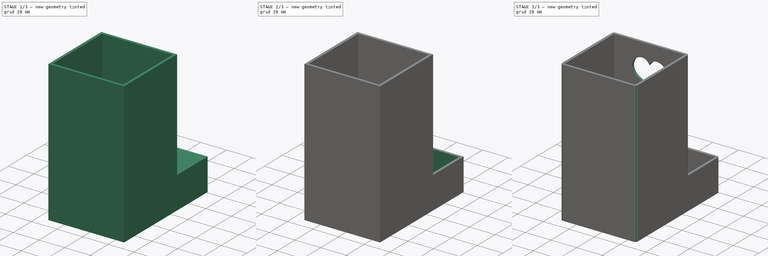
[diagram: build sequence overview — one tinted view per stage of 3, left to right]
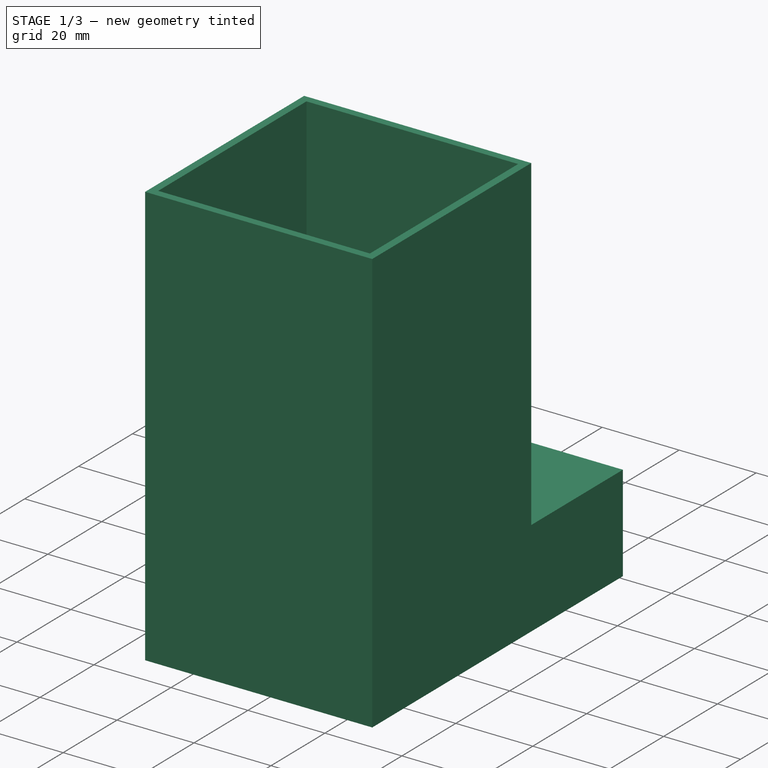
[diagram: stage 1 of 3 — iso view after this stage's code; geometry added in this stage tinted green]
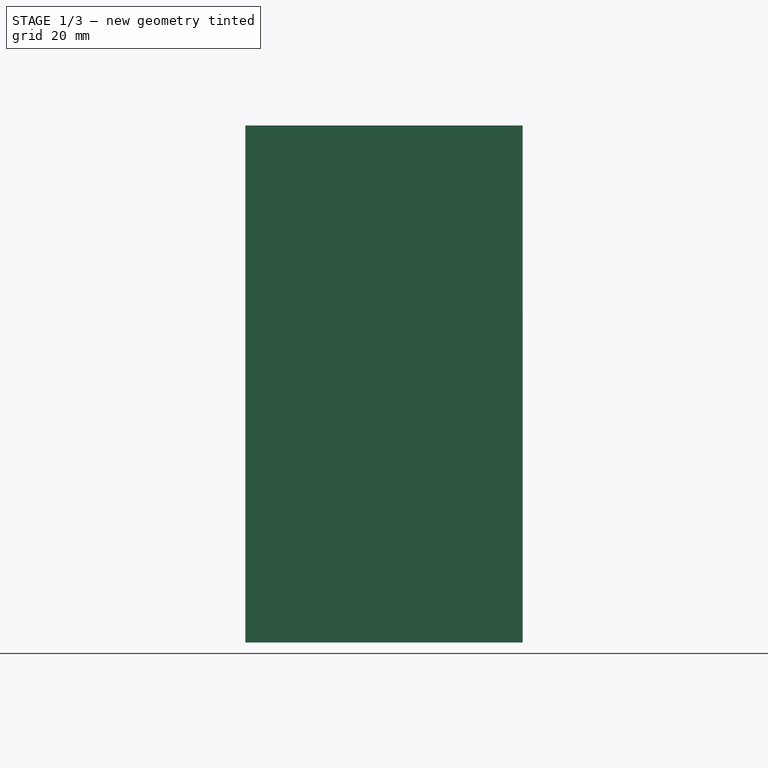
[diagram: stage 1 of 3 — front view after this stage's code; geometry added in this stage tinted green]
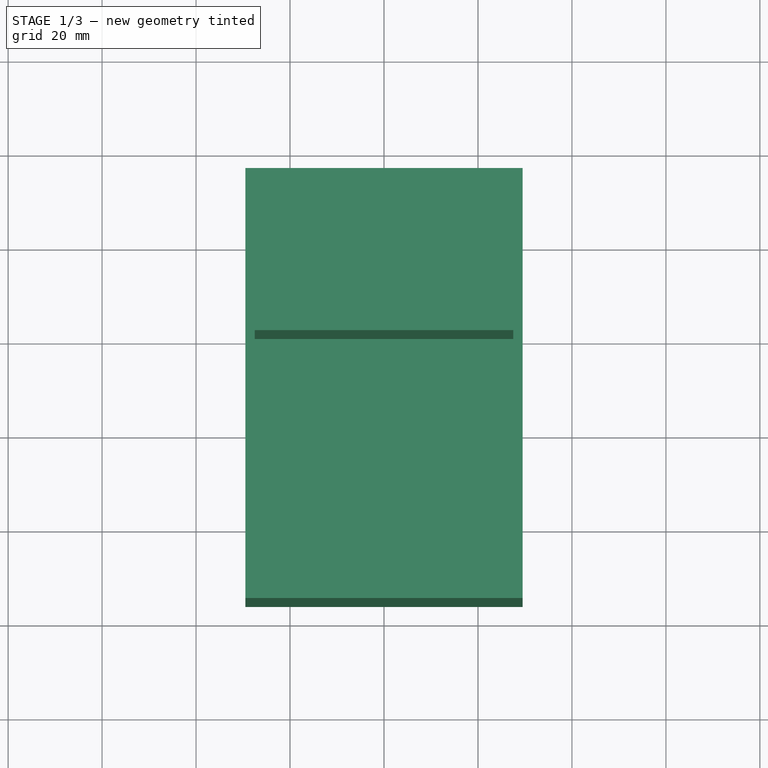
[diagram: stage 1 of 3 — top view after this stage's code; geometry added in this stage tinted green]
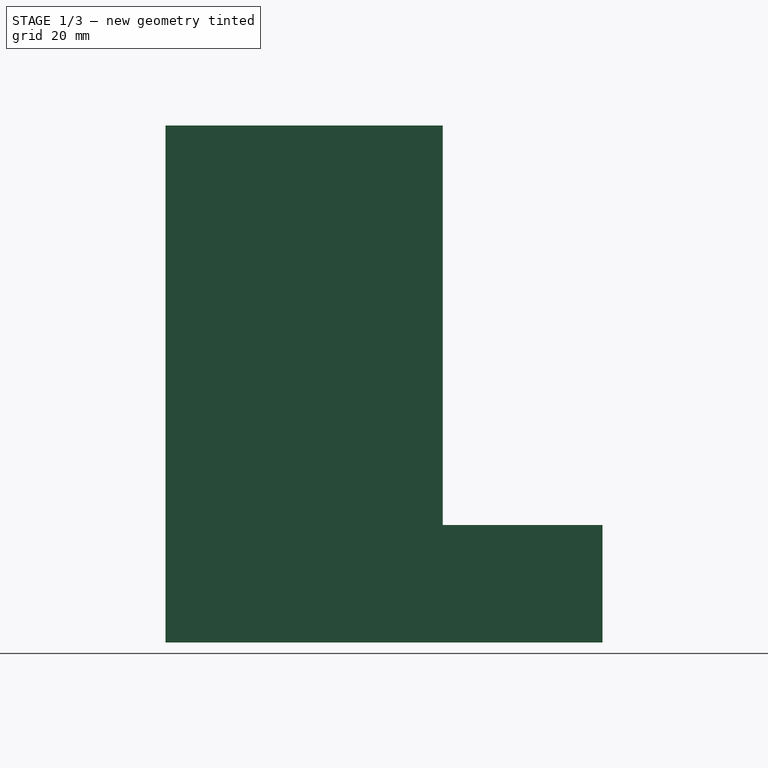
[diagram: stage 1 of 3 — right view after this stage's code; geometry added in this stage tinted green]
FCSTD DOCUMENT  (FreeCAD 1.0R39109 (Git))
Label: Model
License: All rights reserved
LicenseURL: https://en.wikipedia.org/wiki/All_rights_reserved
objects: Sketcher::SketchObject×3, PartDesign::Pad×2, PartDesign::Thickness×2, PartDesign::Body×2, PartDesign::Fillet×2, PartDesign::Boolean×1, PartDesign::Pocket×1
note: 31 computed .brp shape members not serialized (recipe doc carries the construction recipe); baked Part::Feature solids carry a one-line shape summary decoded from their .brp

FEATURE [Sketcher::SketchObject] Sketch
  ArcFitTolerance = 1e-06
  AttachmentSupport = -> [XY_Plane]
  FullyConstrained = true
  MakeInternals = false
  MapMode = 5
  expr: Constraints[10] = 34
  sketch-geometry (5):
    g0: LineSegment StartX=-29.5 StartY=-17 StartZ=0 EndX=29.5 EndY=-17 EndZ=0
    g1: LineSegment StartX=29.5 StartY=-17 StartZ=0 EndX=29.5 EndY=17 EndZ=0
    g2: LineSegment StartX=29.5 StartY=17 StartZ=0 EndX=-29.5 EndY=17 EndZ=0
    g3: LineSegment StartX=-29.5 StartY=17 StartZ=0 EndX=-29.5 EndY=-17 EndZ=0
    g4: GeomPoint [constr] X=0 Y=0 Z=0
  constraints (12):
    c: Coincident(g0,g1)
    c: Coincident(g1,g2)
    c: Coincident(g2,g3)
    c: Coincident(g3,g0)
    c: Horizontal(g0)
    c: Horizontal(g2)
    c: Vertical(g1)
    c: Vertical(g3)
    c: Symmetric(g2,g0,g4)
    c: Distance(g1,g3) = 59
    c: Distance(g0,g2) = 34
    c: Coincident(g4,g-1)
FEATURE [PartDesign::Pad] Pad
  Direction = (0,0,1)
  Length = 25
  Length2 = 10
  Profile = -> Sketch
  ReferenceAxis = -> Sketch [N_Axis]
  Refine = true
  Suppressed = false
  Type = 0
FEATURE [PartDesign::Body] Body
  AllowCompound = false
  Group = -> [Sketch,Pad,Thickness]
  Origin = -> Origin
  Tip = -> Thickness
FEATURE [Sketcher::SketchObject] Sketch002
  ArcFitTolerance = 1e-06
  AttachmentSupport = -> [XY_Plane001]
  FullyConstrained = true
  MakeInternals = false
  MapMode = 5
  expr: Constraints[10] = 34 / 2
  sketch-geometry (5):
    g0: LineSegment StartX=-29.5 StartY=-76 StartZ=0 EndX=29.5 EndY=-76 EndZ=0
    g1: LineSegment StartX=29.5 StartY=-76 StartZ=0 EndX=29.5 EndY=-17 EndZ=0
    g2: LineSegment StartX=29.5 StartY=-17 StartZ=0 EndX=-29.5 EndY=-17 EndZ=0
    g3: LineSegment StartX=-29.5 StartY=-17 StartZ=0 EndX=-29.5 EndY=-76 EndZ=0
    g4: GeomPoint X=0 Y=-17 Z=0
  constraints (13):
    c: Coincident(g0,g1)
    c: Coincident(g1,g2)
    c: Coincident(g2,g3)
    c: Coincident(g3,g0)
    c: Horizontal(g0)
    c: Horizontal(g2)
    c: Vertical(g1)
    c: Vertical(g3)
    c: Distance(g1,g3) = 59
    c: Distance(g0,g2) = 59
    c: Distance(g1,g-1) = 17
    c: Symmetric(g2,g1,g4)
    c: PointOnObject(g4,g-2)
FEATURE [PartDesign::Pad] Pad001
  Direction = (0,0,1)
  Length = 110
  Length2 = 10
  Profile = -> Sketch002
  ReferenceAxis = -> Sketch002 [N_Axis]
  Refine = true
  Suppressed = false
  Type = 0
FEATURE [PartDesign::Thickness] Thickness001
  Base = -> Pad001 [Face6]
  BaseFeature = -> Pad001
  Intersection = false
  Join = 0
  Mode = 0
  Refine = true
  Reversed = true
  SupportTransform = false
  Suppressed = false
  Value = 2
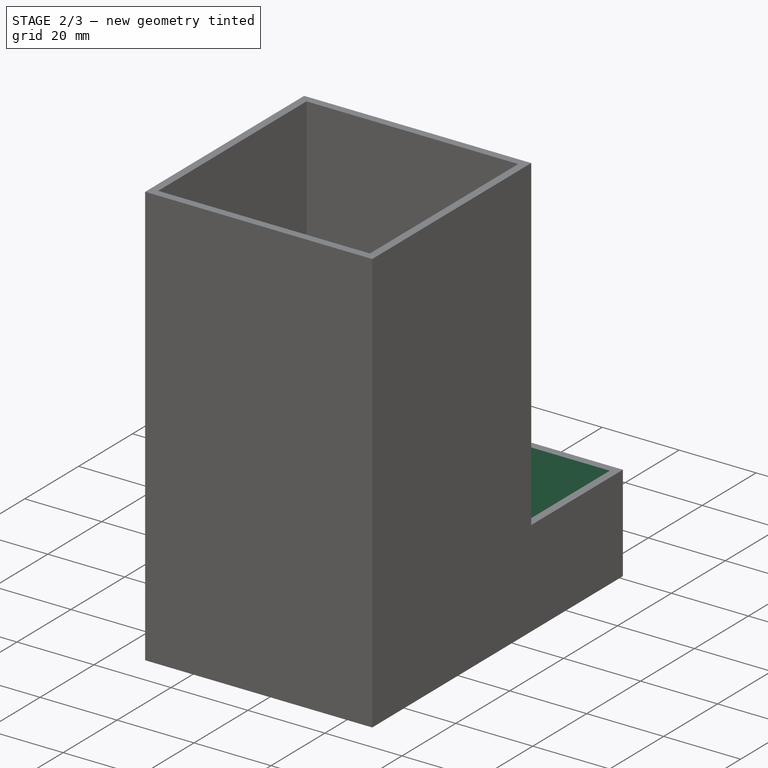
[diagram: stage 2 of 3 — iso view after this stage's code; geometry added in this stage tinted green]
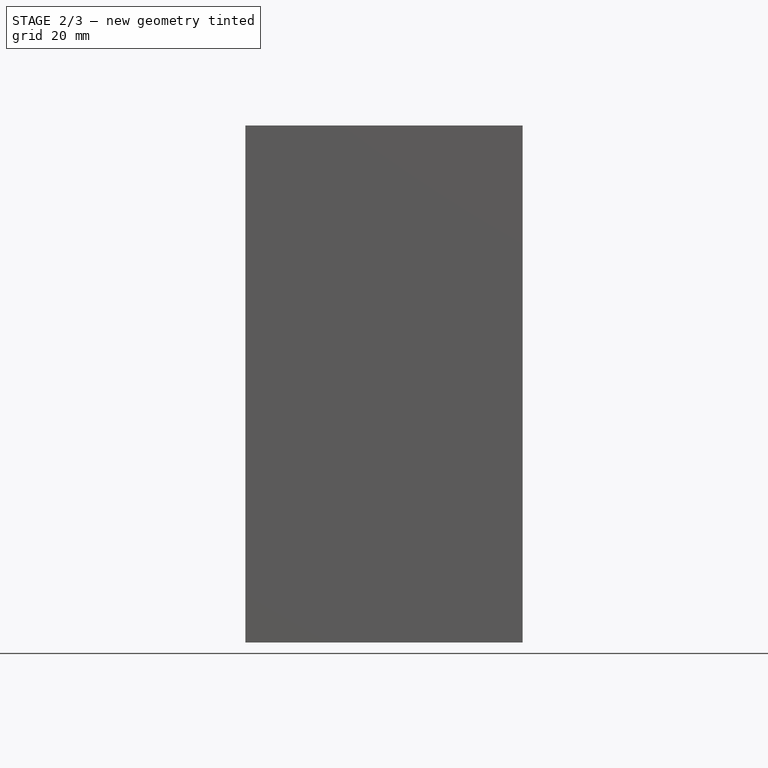
[diagram: stage 2 of 3 — front view after this stage's code; geometry added in this stage tinted green]
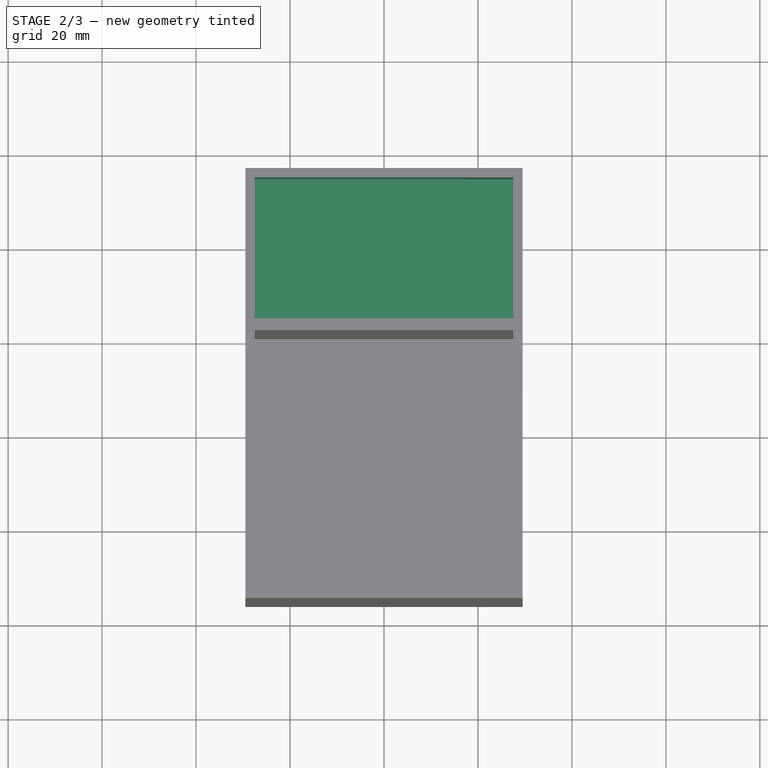
[diagram: stage 2 of 3 — top view after this stage's code; geometry added in this stage tinted green]
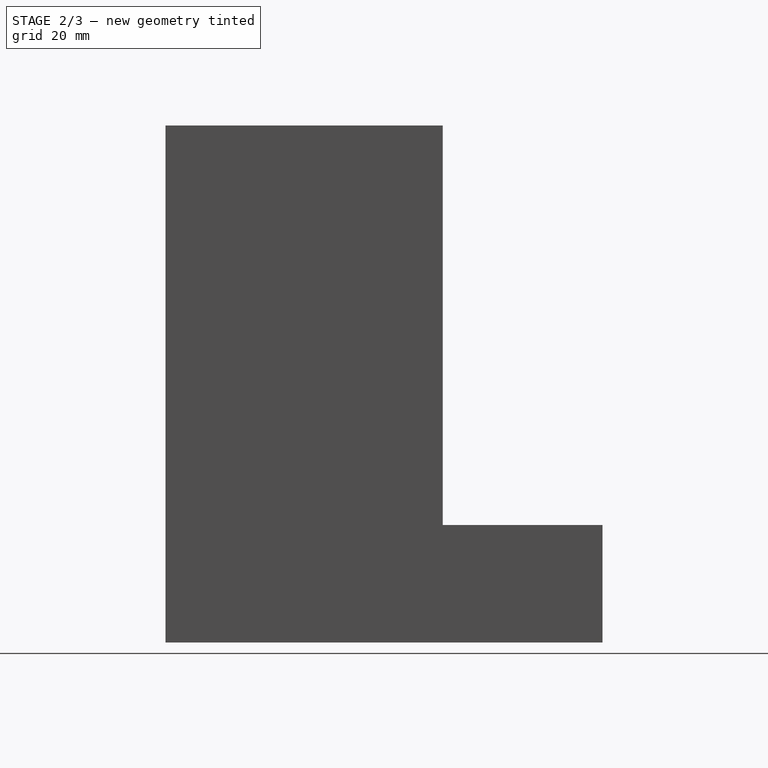
[diagram: stage 2 of 3 — right view after this stage's code; geometry added in this stage tinted green]
FEATURE [PartDesign::Thickness] Thickness
  Base = -> Pad [Face6]
  BaseFeature = -> Pad
  Intersection = false
  Join = 0
  Mode = 0
  Refine = true
  Reversed = true
  SupportTransform = false
  Suppressed = false
  Value = 2
FEATURE [PartDesign::Boolean] Boolean
  BaseFeature = -> Thickness001
  Group = -> [Body]
  Refine = true
  Suppressed = false
  Type = 0
  UsePlacement = true
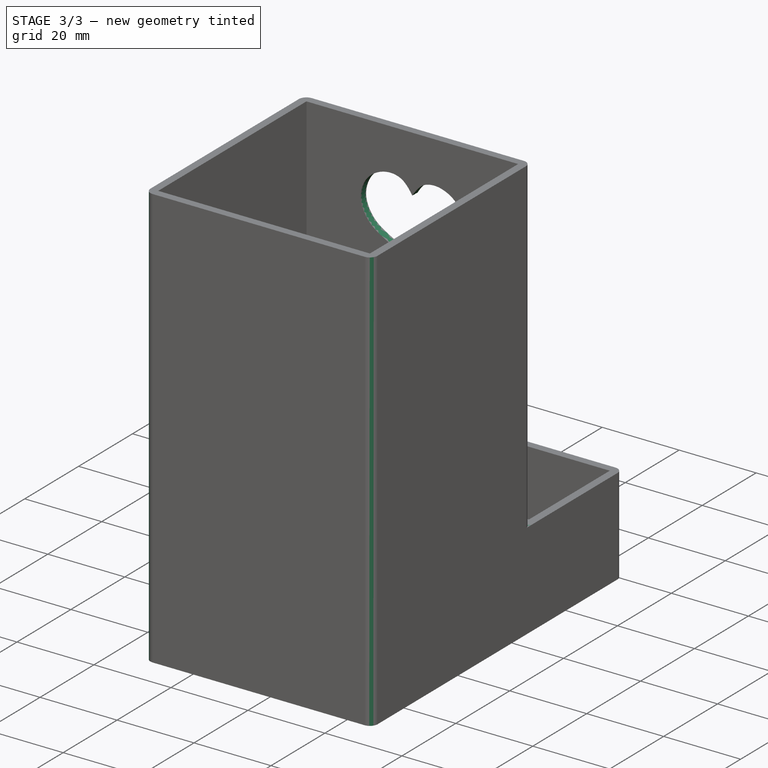
[diagram: stage 3 of 3 — iso view after this stage's code; geometry added in this stage tinted green]
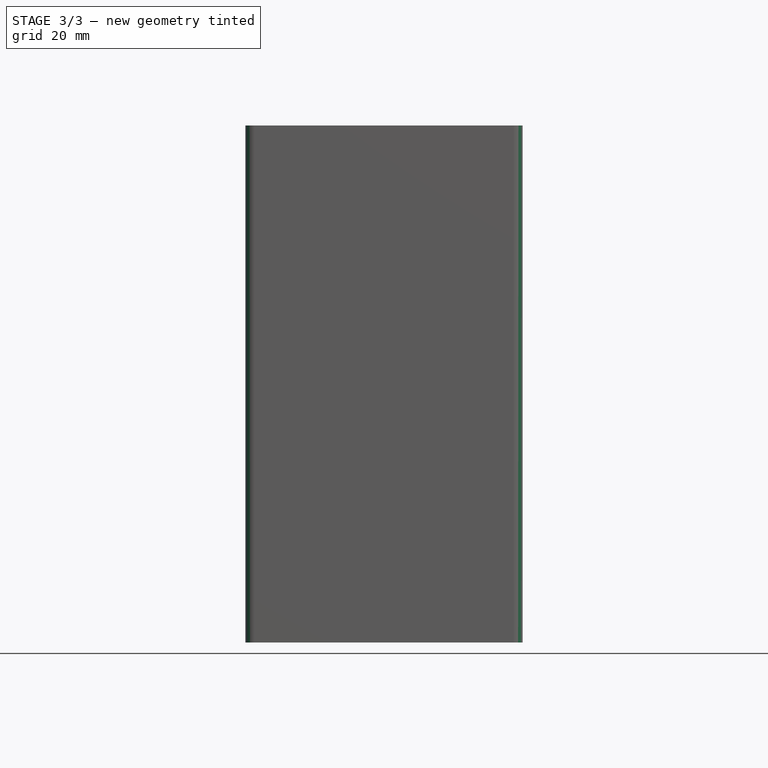
[diagram: stage 3 of 3 — front view after this stage's code; geometry added in this stage tinted green]
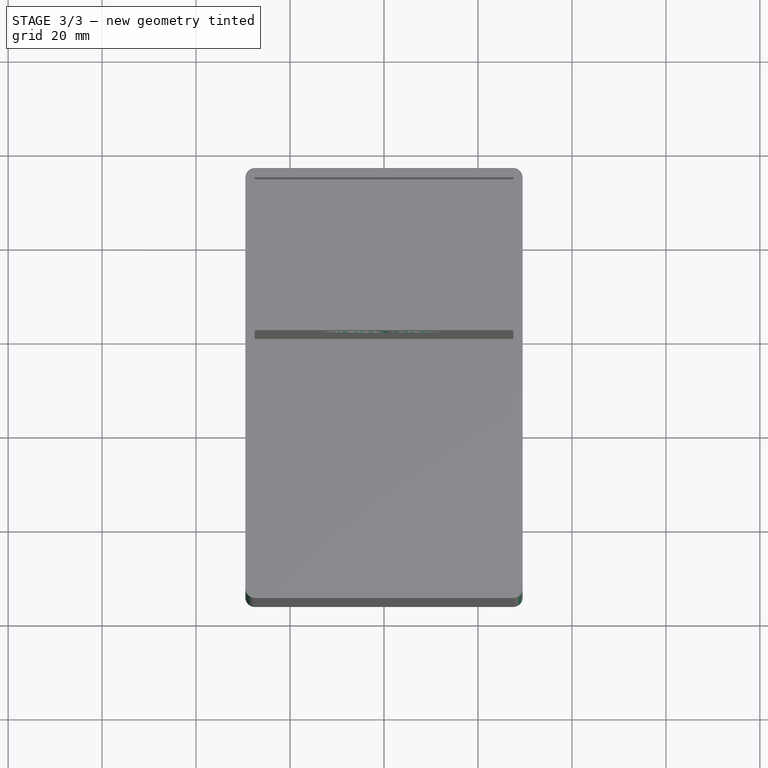
[diagram: stage 3 of 3 — top view after this stage's code; geometry added in this stage tinted green]
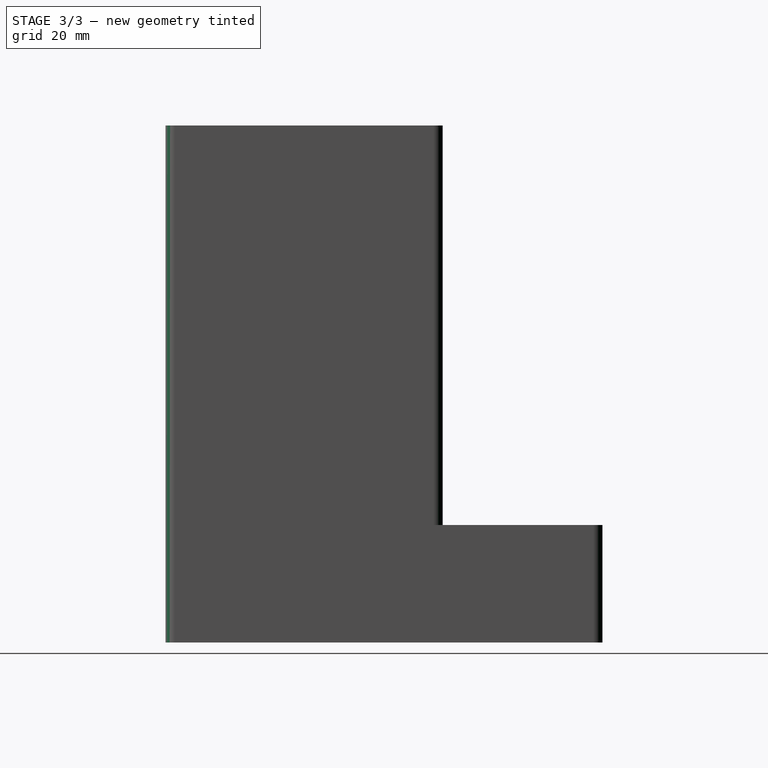
[diagram: stage 3 of 3 — right view after this stage's code; geometry added in this stage tinted green]
FEATURE [PartDesign::Fillet] Fillet
  Base = -> Boolean [Edge2,Edge30,Edge1,Edge31]
  BaseFeature = -> Boolean
  Radius = 2
  Refine = true
  SupportTransform = false
  Suppressed = false
  UseAllEdges = false
FEATURE [PartDesign::Fillet] Fillet001
  Base = -> Fillet [Edge28,Edge25]
  BaseFeature = -> Fillet
  Radius = 2
  Refine = true
  SupportTransform = false
  Suppressed = false
  UseAllEdges = false
FEATURE [Sketcher::SketchObject] Sketch003
  ArcFitTolerance = 1e-06
  FullyConstrained = false
  MakeInternals = false
  MapMode = 5
  Placement = pos=(0,-17,0) rot=(0,0.707107,0.707107;3.14159rad)
  sketch-geometry (42):
    g0-g10: Circle [constr] x11 (B-spline internal-alignment scaffolding for g11; pole/knot coordinates omitted)
    g11: BSplineCurve PolesCount=11 KnotsCount=9 Degree=3 IsPeriodic=0
    g12-g20: GeomPoint [constr] x9 (B-spline internal-alignment scaffolding for g11; pole/knot coordinates omitted)
    g21: BSplineCurve PolesCount=11 KnotsCount=9 Degree=3 IsPeriodic=0
    g22-g32: Circle [constr] x11 (B-spline internal-alignment scaffolding for g21; pole/knot coordinates omitted)
    g33-g41: GeomPoint [constr] x9 (B-spline internal-alignment scaffolding for g21; pole/knot coordinates omitted)
  constraints (8):
    c: Weight(g0) = 1
    c: Equal(g0, g1-g10) x10
    c: InternalAlignment(g0-g10 -> g11) x11
    c: InternalAlignment(g12-g20 -> g11) x9
    c: PointOnObject(g10,g-2)
    c: Weight(g22) = 1
    c: Equal(g22, g23-g32) x10
    c: InternalAlignment(g22-g41 -> g21) x20
FEATURE [PartDesign::Pocket] Pocket
  BaseFeature = -> Fillet001
  Direction = (0,-1,2e-16)
  Length = 5
  Length2 = 5
  Profile = -> Sketch003
  ReferenceAxis = -> Sketch003 [N_Axis]
  Refine = true
  Suppressed = false
  Type = 2
FEATURE [PartDesign::Body] Body001
  AllowCompound = false
  Group = -> [Sketch002,Pad001,Thickness001,Boolean,Fillet,Fillet001,Sketch003,Pocket]
  Origin = -> Origin001
  Tip = -> Pocket
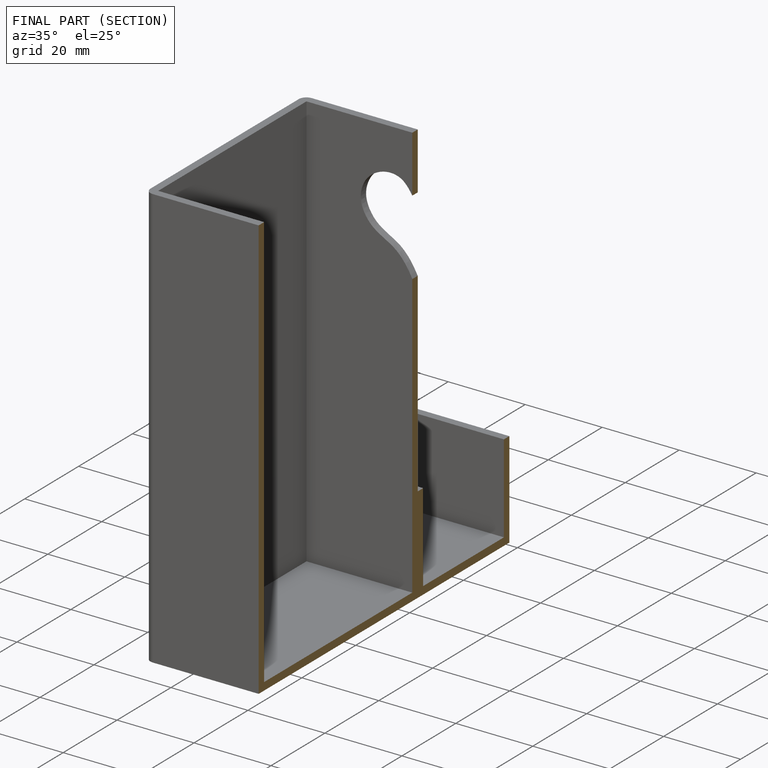
[diagram: finished part — half-section view (interior)]
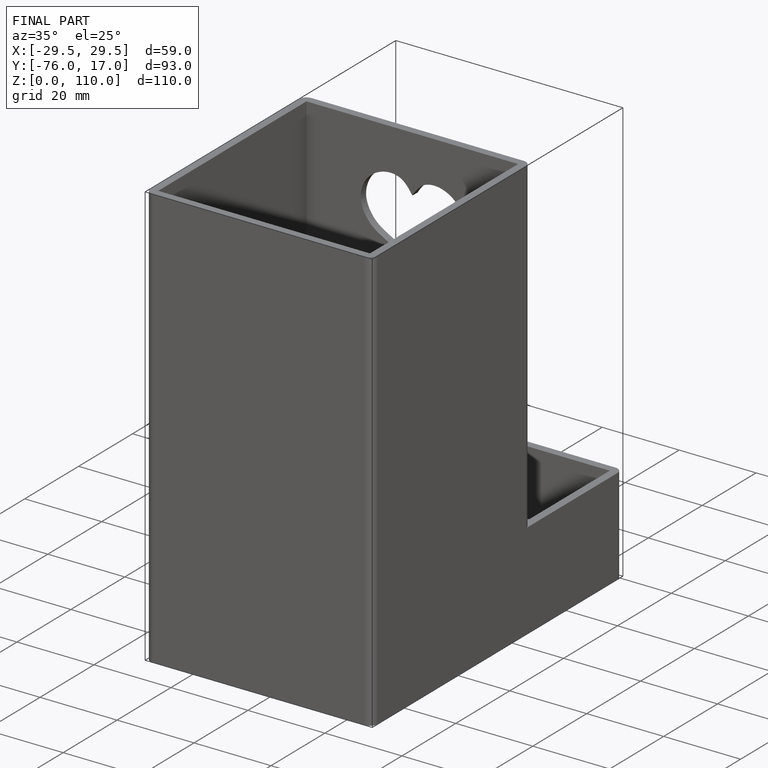
[diagram: finished part — iso view with bounding-box wireframe]
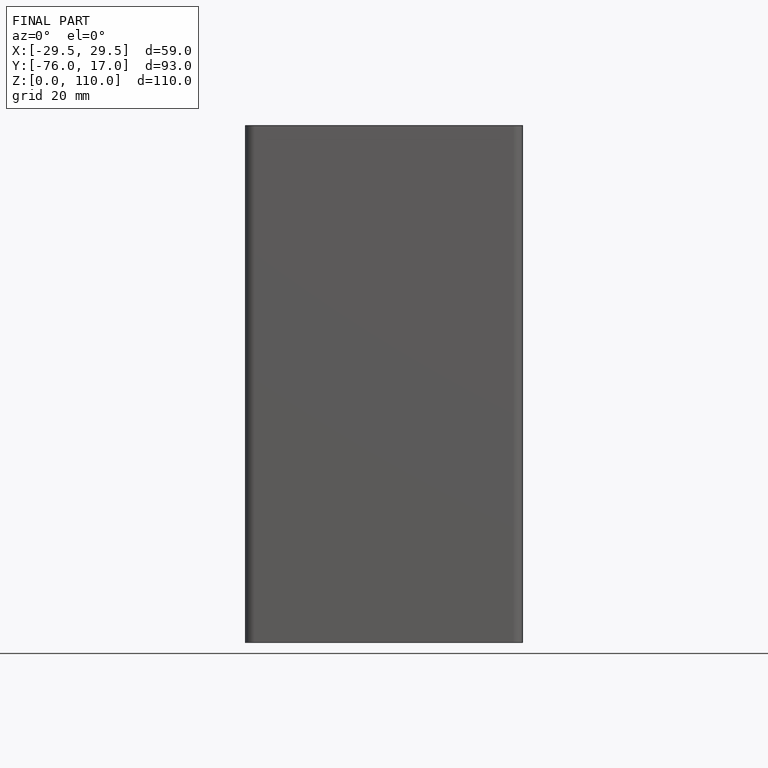
[diagram: finished part — front view with bounding-box wireframe]
